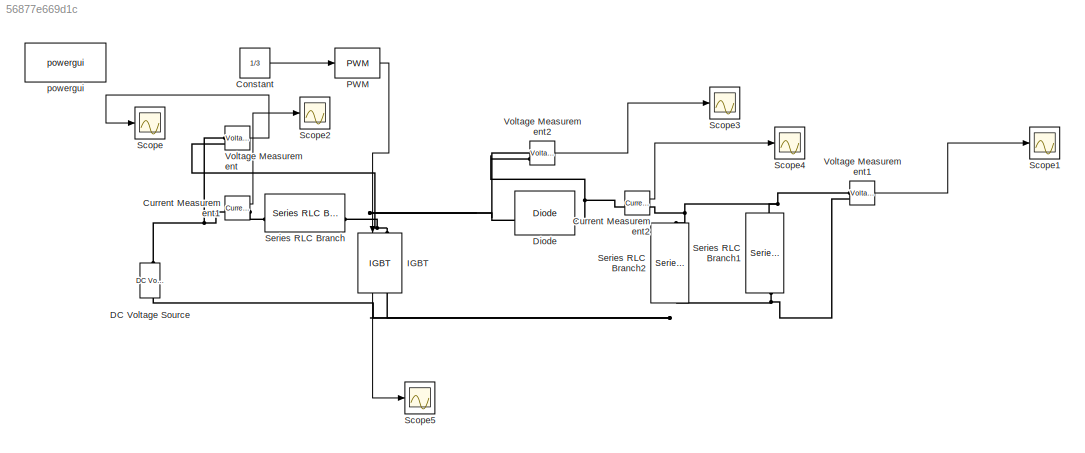
MODEL slx_56877e669d1c
KIND model
CONFIG AbsTol = auto
CONFIG EnableMultiTasking = off
CONFIG FixedStep = auto
CONFIG MaxStep = auto
CONFIG MinStep = auto
CONFIG RelTol = 1e-3
CONFIG SampleTimeConstraint = Unconstrained
CONFIG SolverName = VariableStepAuto
CONFIG StartTime = 0.0
CONFIG StopTime = 0.02
BLOCK [Constant] Constant
  Value = 1/3
BLOCK [Reference] Current Measurement1  REF=spsCurrentMeasurementLib/Current Measurement
  LibrarySourceBlock = sps_lib/Sensors and Measurements/Current Measurement
  SourceBlock = spsCurrentMeasurementLib/Current Measurement
  SourceType = Current Measurement
  UserDataPersistent = on
BLOCK [Reference] Current Measurement2  REF=spsCurrentMeasurementLib/Current Measurement
  LibrarySourceBlock = sps_lib/Sensors and Measurements/Current Measurement
  SourceBlock = spsCurrentMeasurementLib/Current Measurement
  SourceType = Current Measurement
  UserDataPersistent = on
BLOCK [Reference] DC Voltage Source  REF=spsDCVoltageSourceLib/DC Voltage Source
  LibrarySourceBlock = sps_lib/Sources/DC Voltage Source
  SourceBlock = spsDCVoltageSourceLib/DC Voltage Source
  SourceType = DC Voltage Source
BLOCK [Reference] Diode  REF=spsDiodeLib/Diode
  LibrarySourceBlock = sps_lib/Power Electronics/Diode
  SourceBlock = spsDiodeLib/Diode
  SourceType = Diode
BLOCK [Reference] IGBT  REF=spsIGBTLib/IGBT
  LibrarySourceBlock = sps_lib/Power Electronics/IGBT
  NameLocation = left
  SourceBlock = spsIGBTLib/IGBT
  SourceType = IGBT
BLOCK [Reference] PWM  REF=simulink/Discontinuities/PWM
  DisableCoverage = on
  SourceBlock = simulink/Discontinuities/PWM
  SourceType = PWM
BLOCK [Scope] Scope
  ActiveDisplayYMaximum = -71.419213889094834
  ActiveDisplayYMinimum = -71.814054909223145
  Floating = off
  GraphicalSettings = {"Style":{"BackgroundColor":[0.12941176470588237,0.12941176470588237,0.12941176470588237],"AxesColor":[0.07058823529411765,0.07058823529411765,0.07058823529411765],"LabelsColor":[0.8509803921568627,0.8509803921568627,0.8509803921568627],"PreserveColors":false,"Visible":[true],"LineStyle":["-"],"LineWidth":[1.5],"BarWidth":[0.9],"LineColor":["auto"],"LineFaceAlpha":[1],"LineEdgeAlpha":[1],"Marker":...<+2013ch>
  MultipleDisplayCache = [{"MaxYLimMag":10,"MaxYLimReal":-71.419213889094834,"MinYLimMag":0,"MinYLimReal":-71.814054909223145,"PlotAsMagnitudePhase":false,"ShowGrid":true,"ShowLegend":false,"Title":"Inductor Voltage","YLabel":"Voltage(V)"}]
  NumInputPorts = 1
  ScopeFrameLocation = window
  ShowTimeAxisLabel = on
  TimeUnits = Seconds
  Title = Inductor Voltage
  WasSavedAsWebScope = on
  WindowPosition = [0.000000,36.000000,1536.000000,793.000000,]
  YLabel = Voltage(V)
BLOCK [Scope] Scope1
  ActiveDisplayYMaximum = 72.312783798681693
  ActiveDisplayYMinimum = 71.79491107187431
  DataLoggingVariableName = ScopeData1
  Floating = off
  GraphicalSettings = {"AxesScalingProperties":{"AlignXAxis":"Center","AlignYAxis":"Center","AutoScaleXAxisLimits":false,"AxesScaling":"Auto","AxesScalingNumUpdates":10,"ExpandOnly":true,"ScaleAxesLimitsAtStop":false,"XAxisDataRange":100,"YAxisDataRange":80},"DisplayProperties":{"ColorOrder":["auto","auto","auto","auto","auto","auto","auto","auto","auto","auto","auto","auto","auto","auto","auto","auto","auto","auto","a...<+2050ch>
  MultipleDisplayCache = [{"MaxYLimMag":134.7019257905709,"MaxYLimReal":72.312783798681693,"MinYLimMag":0,"MinYLimReal":71.79491107187431,"PlotAsMagnitudePhase":false,"ShowGrid":true,"ShowLegend":false,"Title":"Inductor Voltage","YLabel":"Voltage(V)"}]
  NumInputPorts = 1
  ScopeFrameLocation = window
  ShowTimeAxisLabel = on
  TimeUnits = Seconds
  Title = Inductor Voltage
  WasSavedAsWebScope = on
  WindowPosition = [0.000000,36.000000,1536.000000,793.000000,]
  YLabel = Voltage(V)
BLOCK [Scope] Scope2
  ActiveDisplayYMaximum = 48.661432814247668
  ActiveDisplayYMinimum = -5.40682586824974
  DataLoggingVariableName = ScopeData2
  Floating = off
  GraphicalSettings = {"Style":{"BackgroundColor":[0.12941176470588237,0.12941176470588237,0.12941176470588237],"AxesColor":[0.07058823529411765,0.07058823529411765,0.07058823529411765],"LabelsColor":[0.8509803921568627,0.8509803921568627,0.8509803921568627],"PreserveColors":false,"Visible":[true],"LineStyle":["-"],"LineWidth":[1.5],"BarWidth":[0.9],"LineColor":["auto"],"LineFaceAlpha":[1],"LineEdgeAlpha":[1],"Marker":...<+1985ch>
  MultipleDisplayCache = [{"MaxYLimMag":10,"MaxYLimReal":48.661432814247668,"MinYLimMag":0,"MinYLimReal":-5.40682586824974,"PlotAsMagnitudePhase":false,"ShowGrid":true,"ShowLegend":false,"Title":"%<SignalLabel>","YLabel":""}]
  NumInputPorts = 1
  ScopeFrameLocation = window
  WasSavedAsWebScope = on
  WindowPosition = [0.000000,36.000000,1536.000000,793.000000,]
BLOCK [Scope] Scope3
  ActiveDisplayYMaximum = -100.09954640244761
  ActiveDisplayYMinimum = -119.1035536327262
  DataLoggingVariableName = ScopeData3
  Floating = off
  GraphicalSettings = {"Style":{"BackgroundColor":[0.12941176470588237,0.12941176470588237,0.12941176470588237],"AxesColor":[0.07058823529411765,0.07058823529411765,0.07058823529411765],"LabelsColor":[0.8509803921568627,0.8509803921568627,0.8509803921568627],"PreserveColors":false,"Visible":[true],"LineStyle":["-"],"LineWidth":[1.5],"BarWidth":[0.9],"LineColor":["auto"],"LineFaceAlpha":[1],"LineEdgeAlpha":[1],"Marker":...<+2017ch>
  MultipleDisplayCache = [{"MaxYLimMag":10,"MaxYLimReal":-100.09954640244761,"MinYLimMag":0,"MinYLimReal":-119.1035536327262,"PlotAsMagnitudePhase":false,"ShowGrid":true,"ShowLegend":false,"Title":"Inductor Voltage","YLabel":"Voltage(V)"}]
  NumInputPorts = 1
  ScopeFrameLocation = window
  ShowTimeAxisLabel = on
  TimeUnits = Seconds
  Title = Inductor Voltage
  WasSavedAsWebScope = on
  WindowPosition = [0.000000,36.000000,1536.000000,793.000000,]
  YLabel = Voltage(V)
BLOCK [Scope] Scope4
  ActiveDisplayYMaximum = 119.94435970116221
  ActiveDisplayYMinimum = 118.68002484224856
  DataLoggingVariableName = ScopeData4
  Floating = off
  GraphicalSettings = {"Style":{"BackgroundColor":[0.12941176470588237,0.12941176470588237,0.12941176470588237],"AxesColor":[0.07058823529411765,0.07058823529411765,0.07058823529411765],"LabelsColor":[0.8509803921568627,0.8509803921568627,0.8509803921568627],"PreserveColors":false,"Visible":[true],"LineStyle":["-"],"LineWidth":[1.5],"BarWidth":[0.9],"LineColor":["auto"],"LineFaceAlpha":[1],"LineEdgeAlpha":[1],"Marker":...<+2013ch>
  MultipleDisplayCache = [{"MaxYLimMag":10,"MaxYLimReal":119.94435970116221,"MinYLimMag":0,"MinYLimReal":118.68002484224856,"PlotAsMagnitudePhase":false,"ShowGrid":true,"ShowLegend":false,"Title":"Inductor Voltage","YLabel":"Voltage(V)"}]
  NumInputPorts = 1
  ScopeFrameLocation = window
  ShowTimeAxisLabel = on
  TimeUnits = Seconds
  Title = Inductor Voltage
  WasSavedAsWebScope = on
  WindowPosition = [0.000000,36.000000,1536.000000,793.000000,]
  YLabel = Voltage(V)
BLOCK [Scope] Scope5
  ActiveDisplayYMaximum = 15.65873726701828
  ActiveDisplayYMinimum = -12.027963117126042
  DataLoggingVariableName = ScopeData5
  Floating = off
  GraphicalSettings = {"AxesScalingProperties":{"AlignXAxis":"Center","AlignYAxis":"Center","AutoScaleXAxisLimits":false,"AxesScaling":"Auto","AxesScalingNumUpdates":10,"ExpandOnly":true,"ScaleAxesLimitsAtStop":false,"XAxisDataRange":100,"YAxisDataRange":80},"DisplayProperties":{"ColorOrder":["auto","auto","auto","auto","auto","auto","auto","auto","auto","auto","auto","auto","auto","auto","auto","auto","auto","auto","a...<+2123ch>
  MultipleDisplayCache = [{"MaxYLimMag":10,"MaxYLimReal":15.65873726701828,"MinYLimMag":0,"MinYLimReal":-12.027963117126042,"PlotAsMagnitudePhase":false,"ShowGrid":true,"ShowLegend":false,"Title":"%<SignalLabel>","YLabel":""}]
  NumInputPorts = 1
  ScopeFrameLocation = window
  WasSavedAsWebScope = on
  WindowPosition = [0.000000,36.000000,1536.000000,793.000000,]
BLOCK [Reference] Series RLC Branch  REF=spsSeriesRLCBranchLib/Series RLC Branch
  LibrarySourceBlock = sps_lib/Passives/Series RLC Branch
  SourceBlock = spsSeriesRLCBranchLib/Series RLC Branch
  SourceType = Series RLC Branch
BLOCK [Reference] Series RLC Branch1  REF=spsSeriesRLCBranchLib/Series RLC Branch
  LibrarySourceBlock = sps_lib/Passives/Series RLC Branch
  NameLocation = left
  SourceBlock = spsSeriesRLCBranchLib/Series RLC Branch
  SourceType = Series RLC Branch
BLOCK [Reference] Series RLC Branch2  REF=spsSeriesRLCBranchLib/Series RLC Branch
  LibrarySourceBlock = sps_lib/Passives/Series RLC Branch
  NameLocation = left
  SourceBlock = spsSeriesRLCBranchLib/Series RLC Branch
  SourceType = Series RLC Branch
BLOCK [Reference] Voltage Measurement  REF=spsVoltageMeasurementLib/Voltage Measurement
  LibrarySourceBlock = sps_lib/Sensors and Measurements/Voltage Measurement
  SourceBlock = spsVoltageMeasurementLib/Voltage Measurement
  SourceType = Voltage Measurement
  UserDataPersistent = on
BLOCK [Reference] Voltage Measurement1  REF=spsVoltageMeasurementLib/Voltage Measurement
  LibrarySourceBlock = sps_lib/Sensors and Measurements/Voltage Measurement
  SourceBlock = spsVoltageMeasurementLib/Voltage Measurement
  SourceType = Voltage Measurement
  UserDataPersistent = on
BLOCK [Reference] Voltage Measurement2  REF=spsVoltageMeasurementLib/Voltage Measurement
  LibrarySourceBlock = sps_lib/Sensors and Measurements/Voltage Measurement
  SourceBlock = spsVoltageMeasurementLib/Voltage Measurement
  SourceType = Voltage Measurement
  UserDataPersistent = on
BLOCK [Reference] powergui  REF=sps_lib/powergui
  LibrarySourceBlock = sps_lib/powergui
  Priority = 1
  SourceBlock = sps_lib/powergui
  SourceType = PSB option menu block
LINE Constant:1 -> PWM:1
LINE Current Measurement1:1 -> Scope2:1
LINE Current Measurement2:1 -> Scope4:1
LINE IGBT:1 -> Scope5:1
LINE PWM:1 -> IGBT:1
LINE Voltage Measurement1:1 -> Scope1:1
LINE Voltage Measurement2:1 -> Scope3:1
LINE Voltage Measurement:1 -> Scope:1
PNET net1: Current Measurement1:LConn1 -- DC Voltage Source:RConn1 -- Voltage Measurement:LConn1
PLINE Current Measurement1:RConn1 -- Series RLC Branch:LConn1
PNET net2: Current Measurement2:LConn1 -- Diode:RConn1 -- Voltage Measurement2:LConn2
PNET net3: Current Measurement2:RConn1 -- Series RLC Branch1:LConn1 -- Series RLC Branch2:LConn1 -- Voltage Measurement1:LConn1
PNET net4: DC Voltage Source:LConn1 -- IGBT:RConn1 -- Series RLC Branch1:RConn1 -- Series RLC Branch2:RConn1 -- Voltage Measurement1:LConn2
PNET net5: Diode:LConn1 -- IGBT:LConn1 -- Series RLC Branch:RConn1 -- Voltage Measurement2:LConn1 -- Voltage Measurement:LConn2
note: PNET lines group multi-terminal physical nets as a canonical sorted terminal list (undirected conserving connections); 2-terminal nets keep the pairwise PLINE form
